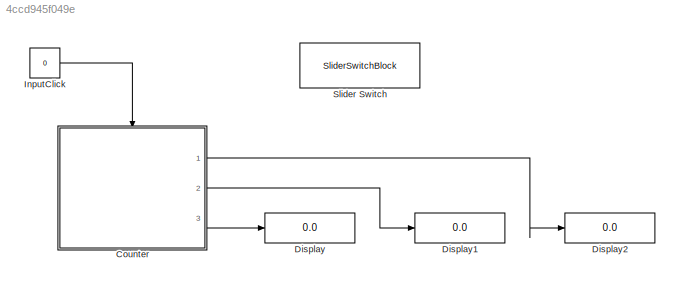
MODEL slx_4ccd945f049e
KIND model
CONFIG AbsTol = auto
CONFIG EnableMultiTasking = off
CONFIG FixedStep = auto
CONFIG MaxStep = auto
CONFIG MinStep = auto
CONFIG RelTol = 1e-3
CONFIG SampleTimeConstraint = Unconstrained
CONFIG Solver = VariableStepAuto
CONFIG SolverName = VariableStepAuto
CONFIG StartTime = 0.0
CONFIG StopTime = inf
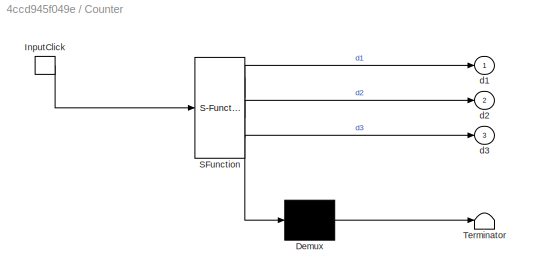
BLOCK [SubSystem] Counter
  ErrorFcn = Stateflow.Translate.translate
  PermitHierarchicalResolution = ExplicitOnly
  Ports = [0, 3, 0, 1]
  RequestExecContextInheritance = off
  SFBlockType = Chart
  TreatAsAtomicUnit = on
BLOCK [Demux] Counter/ Demux 
  Outputs = 1
  Ports = [1, 1]
BLOCK [S-Function] Counter/ SFunction 
  EnableBusSupport = on
  FunctionName = sf_sfun
  PortCounts = [1 4]
  Ports = [1, 4]
  SFcnIsStateOwnerBlock = off
  SFunctionDeploymentMode = off
  Tag = Stateflow S-Function 3
BLOCK [Terminator] Counter/ Terminator 
BLOCK [TriggerPort] Counter/InputClick
  Ports = [0, 1]
  ShowOutputPort = on
  StatesWhenEnabling = held
  VariantControl = (inherit)
BLOCK [Outport] Counter/d1
BLOCK [Outport] Counter/d2
  Port = 2
BLOCK [Outport] Counter/d3
  Port = 3
BLOCK [Display] Display
  Decimation = 1
  Ports = [1]
BLOCK [Display] Display1
  Decimation = 1
  Ports = [1]
BLOCK [Display] Display2
  Decimation = 1
  Ports = [1]
BLOCK [Constant] InputClick
  Value = 0
BLOCK [SliderSwitchBlock] Slider Switch
LINE Counter:1 -> Display2:1
LINE Counter:2 -> Display1:1
LINE Counter:3 -> Display:1
LINE InputClick:1 -> Counter:trigger
CHART Counter states=18 transitions=18
  STATE_LABEL 'Digit_1'
  STATE_LABEL 'One\nen: d1 = 1;'
  STATE_LABEL 'Two\nen: d1 = 2;'
  STATE_LABEL 'Three\nen: d1 = 3;'
  STATE_LABEL 'Zero\nen: d1 = 0;'
  STATE_LABEL 'Four\nen: d1 = 4;'
  STATE_LABEL 'InputClick'
  STATE_LABEL 'InputClick'
  STATE_LABEL 'InputClick'
  STATE_LABEL 'InputClick'
  STATE_LABEL 'InputClick/{Inc2}'
  STATE_LABEL 'One\nen: d1 = 1;'
  STATE_LABEL 'Two\nen: d1 = 2;'
  STATE_LABEL 'Three\nen: d1 = 3;'
  STATE_LABEL 'Zero\nen: d1 = 0;'
  STATE_LABEL 'Four\nen: d1 = 4;'
  STATE_LABEL 'Digit_2'
  STATE_LABEL 'One\nen: d2 = 1;'
  STATE_LABEL 'Two\nen: d2 = 2;'
  STATE_LABEL 'Three\nen: d2 = 3;'
  STATE_LABEL 'Zero\nen: d2 = 0;'
  STATE_LABEL 'Four\nen: d2 = 4;'
  STATE_LABEL 'Inc2'
  STATE_LABEL 'Inc2'
  STATE_LABEL 'Inc2'
  STATE_LABEL 'Inc2'
  STATE_LABEL 'Inc2/{Inc3}'
  STATE_LABEL 'One\nen: d2 = 1;'
  STATE_LABEL 'Two\nen: d2 = 2;'
  STATE_LABEL 'Three\nen: d2 = 3;'
  STATE_LABEL 'Zero\nen: d2 = 0;'
  STATE_LABEL 'Four\nen: d2 = 4;'
  STATE_LABEL 'Digit_3'
  STATE_LABEL 'One\nen: d3 = 1;'
  STATE_LABEL 'Two\nen: d3 = 2;'
  STATE_LABEL 'Three\nen: d3 = 3;'
  STATE_LABEL 'Zero\nen: d3 = 0;'
  STATE_LABEL 'Four\nen: d3 = 4;'
  STATE_LABEL 'Inc3'
  STATE_LABEL 'Inc3'
CHART  states=0 transitions=0
